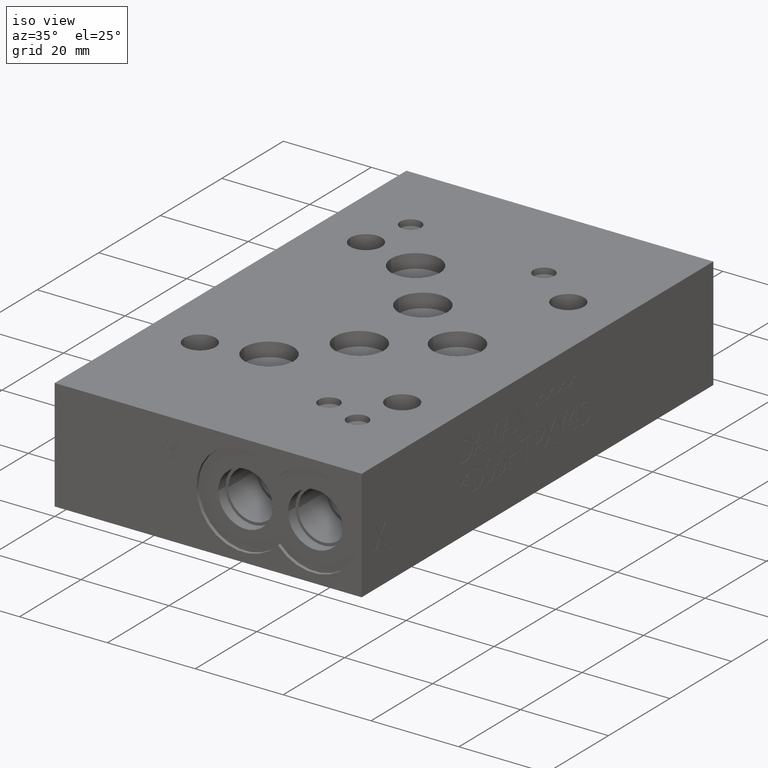
[diagram: clean part render]
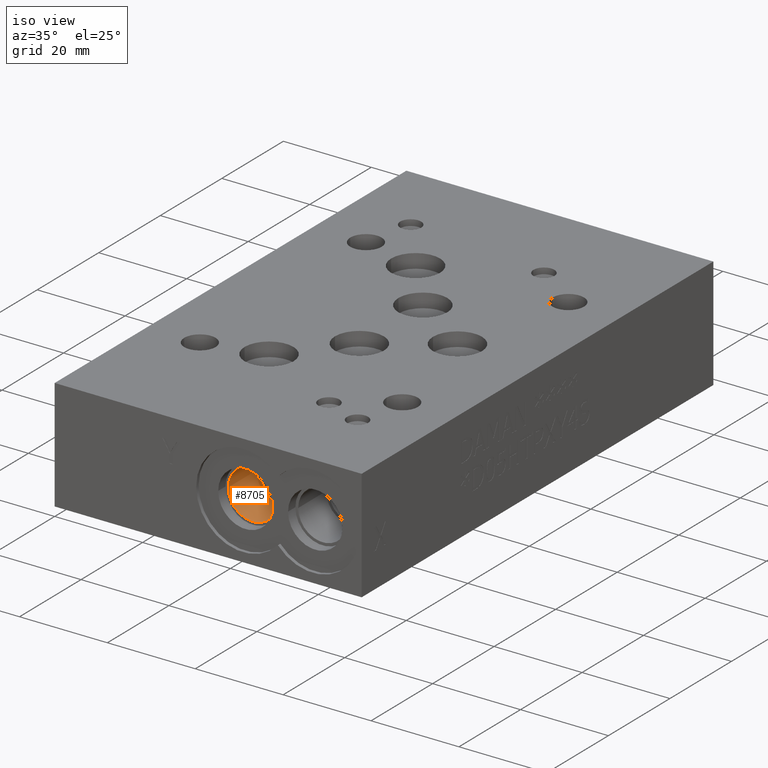
[diagram: same view with one face highlighted and labeled with its STEP entity id]
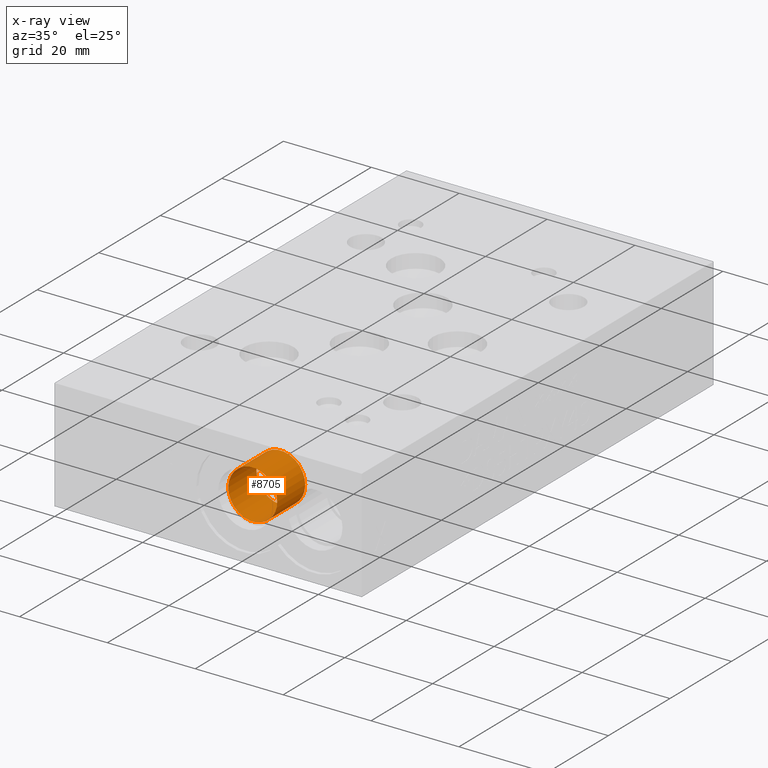
[diagram: x-ray of the same camera — body ghosted, the highlighted face saturated]
A machine part, iso view. The second image highlights one B-rep face of the part: STEP entity #8705.
The next image is the same camera in x-ray: the body ghosted, the highlighted face saturated — about 0% of this face is hidden behind the body in this view.
In plain terms, the highlighted cylindrical surface (bore or boss wall) has radius 5.5626 mm, axis along (0, -1, 0).
Its self-contained STEP definition (entity closure, byte-faithful):
#116=CIRCLE('',#9190,5.5626);
#118=CIRCLE('',#9193,5.5626);
#170=CYLINDRICAL_SURFACE('',#9192,5.5626);
#879=FACE_OUTER_BOUND('',#1388,.T.);
#1388=EDGE_LOOP('',(#7438,#7439,#7440,#7441));
#2356=LINE('',#14366,#3293);
#3293=VECTOR('',#11028,5.5626);
#4075=VERTEX_POINT('',#14359);
#4077=VERTEX_POINT('',#14364);
#5224=EDGE_CURVE('',#4075,#4075,#116,.T.);
#5226=EDGE_CURVE('',#4077,#4077,#118,.T.);
#5227=EDGE_CURVE('',#4077,#4075,#2356,.T.);
#7438=ORIENTED_EDGE('',*,*,#5226,.F.);
#7439=ORIENTED_EDGE('',*,*,#5227,.T.);
#7440=ORIENTED_EDGE('',*,*,#5224,.F.);
#7441=ORIENTED_EDGE('',*,*,#5227,.F.);
#8705=ADVANCED_FACE('',(#879),#170,.F.);
#9190=AXIS2_PLACEMENT_3D('',#14360,#11020,#11021);
#9192=AXIS2_PLACEMENT_3D('',#14363,#11024,#11025);
#9193=AXIS2_PLACEMENT_3D('',#14365,#11026,#11027);
#11020=DIRECTION('center_axis',(0.,-1.,0.));
#11021=DIRECTION('ref_axis',(1.,0.,0.));
#11024=DIRECTION('center_axis',(0.,-1.,0.));
#11025=DIRECTION('ref_axis',(1.,0.,0.));
#11026=DIRECTION('center_axis',(0.,1.,0.));
#11027=DIRECTION('ref_axis',(1.,0.,0.));
#11028=DIRECTION('',(0.,1.,0.));
#14359=CARTESIAN_POINT('',(37.2872,12.2936,12.7));
#14360=CARTESIAN_POINT('Origin',(42.8498,12.2936,12.7));
#14363=CARTESIAN_POINT('Origin',(42.8498,6.1468,12.7));
#14364=CARTESIAN_POINT('',(37.2872,3.175,12.7));
#14365=CARTESIAN_POINT('Origin',(42.8498,3.175,12.7));
#14366=CARTESIAN_POINT('',(37.2872,6.1468,12.7));